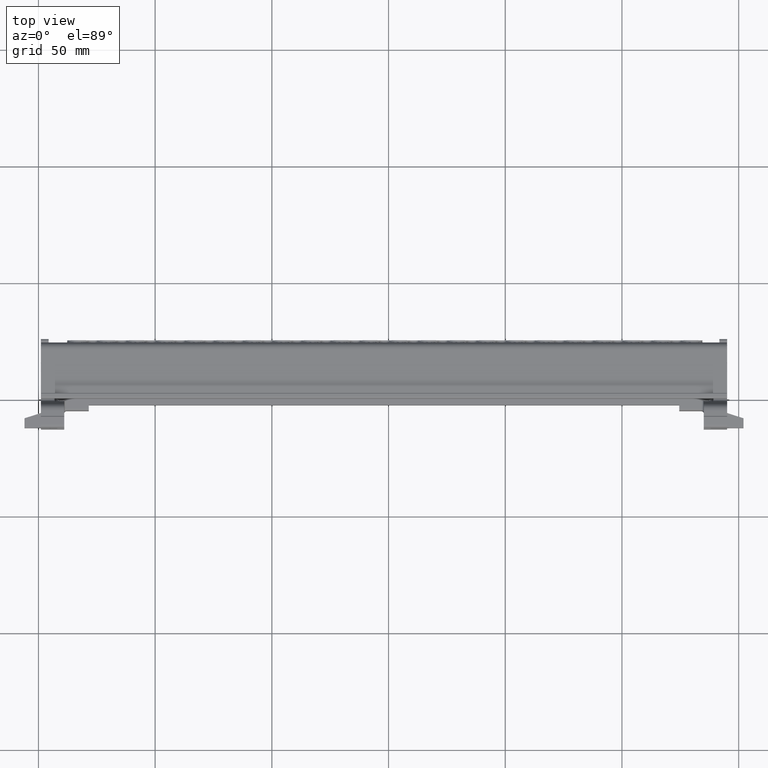
[diagram: clean part render]
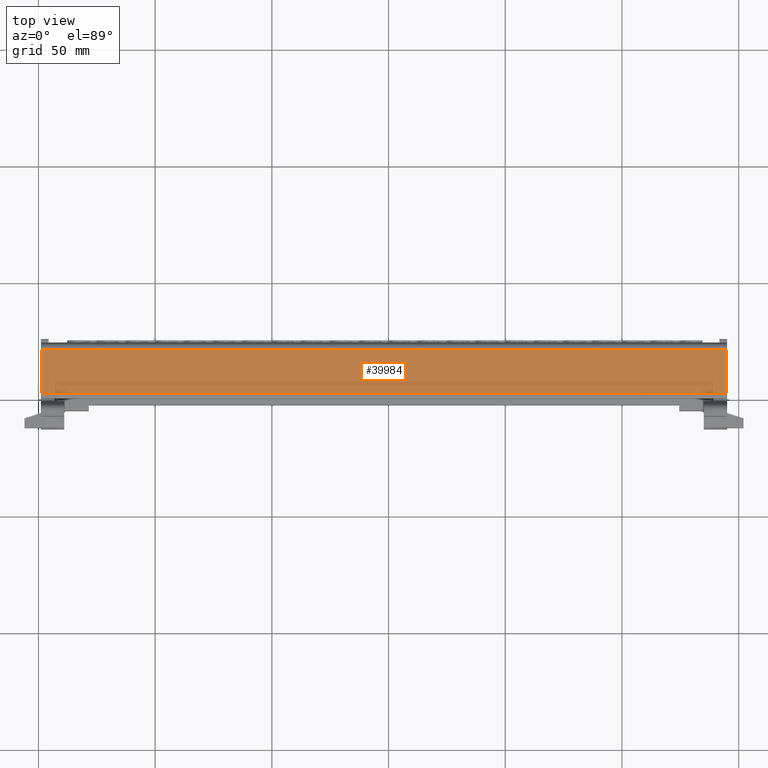
[diagram: same view with one face highlighted and labeled with its STEP entity id]
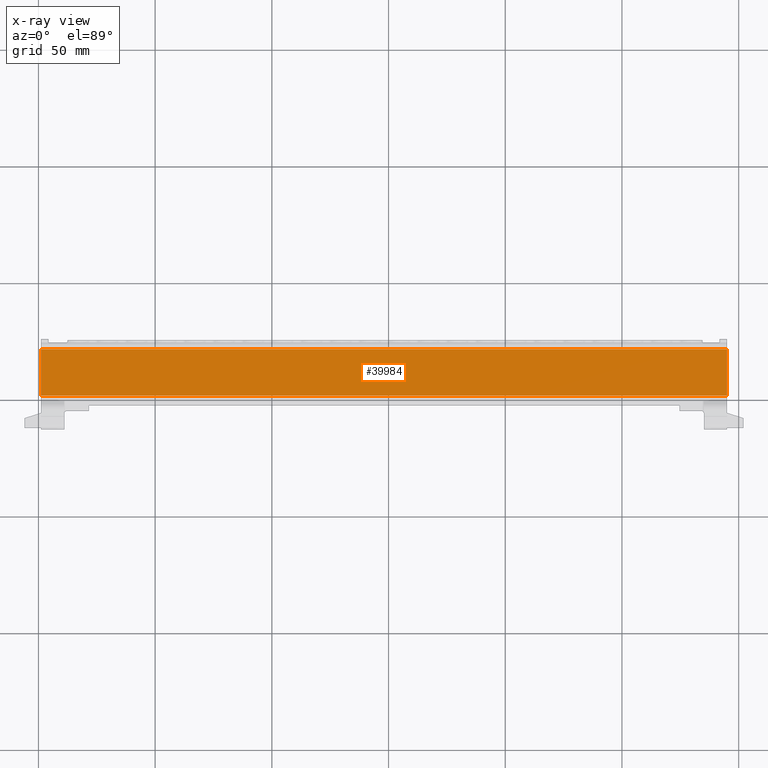
[diagram: x-ray of the same camera — body ghosted, the highlighted face saturated]
A machine part, top view. The second image highlights one B-rep face of the part: STEP entity #39984.
The next image is the same camera in x-ray: the body ghosted, the highlighted face saturated — about 0% of this face is hidden behind the body in this view.
In plain terms, the highlighted planar face has unit normal (0, 0.0175, 0.9998).
Its self-contained STEP definition (entity closure, byte-faithful):
#177 = CARTESIAN_POINT ( 'NONE',  ( -248.8526976958255800, 51.37580093707762100, 47.42095043314564200 ) ) ;
#460 = EDGE_LOOP ( 'NONE', ( #20515, #20500, #20468, #20487 ) ) ;
#5592 = VECTOR ( 'NONE', #37082, 1000.000000000000000 ) ;
#7463 = VERTEX_POINT ( 'NONE', #18840 ) ;
#7491 = VERTEX_POINT ( 'NONE', #18833 ) ;
#7498 = VERTEX_POINT ( 'NONE', #177 ) ;
#7507 = VERTEX_POINT ( 'NONE', #14648 ) ;
#9130 = DIRECTION ( 'NONE',  ( -1.000000000000000000, 7.897574933817843200E-015, 3.853197191115062900E-015 ) ) ;
#9147 = CARTESIAN_POINT ( 'NONE',  ( -150.8526976958254700, 71.26518187041278900, 47.07379214778585200 ) ) ;
#9155 = LINE ( 'NONE', #9147, #21566 ) ;
#14648 = CARTESIAN_POINT ( 'NONE',  ( -248.8526976958254100, 71.26518187041357100, 47.07379214778622200 ) ) ;
#18833 = CARTESIAN_POINT ( 'NONE',  ( 44.94730230417442800, 51.37580093707529700, 47.42095043314451200 ) ) ;
#18840 = CARTESIAN_POINT ( 'NONE',  ( 44.94730230417454200, 71.26518187041125400, 47.07379214778509200 ) ) ;
#20468 = ORIENTED_EDGE ( 'NONE', *, *, #34634, .T. ) ;
#20487 = ORIENTED_EDGE ( 'NONE', *, *, #40385, .F. ) ;
#20500 = ORIENTED_EDGE ( 'NONE', *, *, #40305, .T. ) ;
#20515 = ORIENTED_EDGE ( 'NONE', *, *, #41690, .F. ) ;
#21566 = VECTOR ( 'NONE', #9130, 1000.000000000000000 ) ;
#25704 = AXIS2_PLACEMENT_3D ( 'NONE', #46754, #46700, #46669 ) ;
#29051 = VECTOR ( 'NONE', #46893, 999.9999999999998900 ) ;
#29319 = VECTOR ( 'NONE', #47395, 999.9999999999998900 ) ;
#34634 = EDGE_CURVE ( 'NONE', #7463, #7507, #9155, .T. ) ;
#37039 = CARTESIAN_POINT ( 'NONE',  ( -150.8526976958256100, 51.37580093707684600, 47.42095043314526500 ) ) ;
#37073 = LINE ( 'NONE', #37039, #5592 ) ;
#37082 = DIRECTION ( 'NONE',  ( -1.000000000000000000, 7.897574933817843200E-015, 3.853197191115062900E-015 ) ) ;
#39984 = ADVANCED_FACE ( 'NONE', ( #46717 ), #46665, .T. ) ;
#40305 = EDGE_CURVE ( 'NONE', #7491, #7463, #46774, .T. ) ;
#40385 = EDGE_CURVE ( 'NONE', #7498, #7507, #47393, .T. ) ;
#41690 = EDGE_CURVE ( 'NONE', #7491, #7498, #37073, .T. ) ;
#46665 = PLANE ( 'NONE',  #25704 ) ;
#46669 = DIRECTION ( 'NONE',  ( -6.946894149668181800E-015, -0.9998477058144494800, 0.01745179582685387600 ) ) ;
#46700 = DIRECTION ( 'NONE',  ( 3.990437234262073400E-015, 0.01745179582685387600, 0.9998477058144494800 ) ) ;
#46717 = FACE_OUTER_BOUND ( 'NONE', #460, .T. ) ;
#46754 = CARTESIAN_POINT ( 'NONE',  ( -150.8526976958255300, 62.90220683324422900, 47.21976331119908800 ) ) ;
#46774 = LINE ( 'NONE', #46814, #29051 ) ;
#46814 = CARTESIAN_POINT ( 'NONE',  ( 44.94730230417448500, 62.90220683324267300, 47.21976331119832800 ) ) ;
#46893 = DIRECTION ( 'NONE',  ( 7.863057209116746500E-015, 0.9998477058144494800, -0.01745179582685387600 ) ) ;
#47311 = CARTESIAN_POINT ( 'NONE',  ( -248.8526976958254700, 62.90220683324500300, 47.21976331119945800 ) ) ;
#47393 = LINE ( 'NONE', #47311, #29319 ) ;
#47395 = DIRECTION ( 'NONE',  ( 7.863057209116746500E-015, 0.9998477058144494800, -0.01745179582685387600 ) ) ;